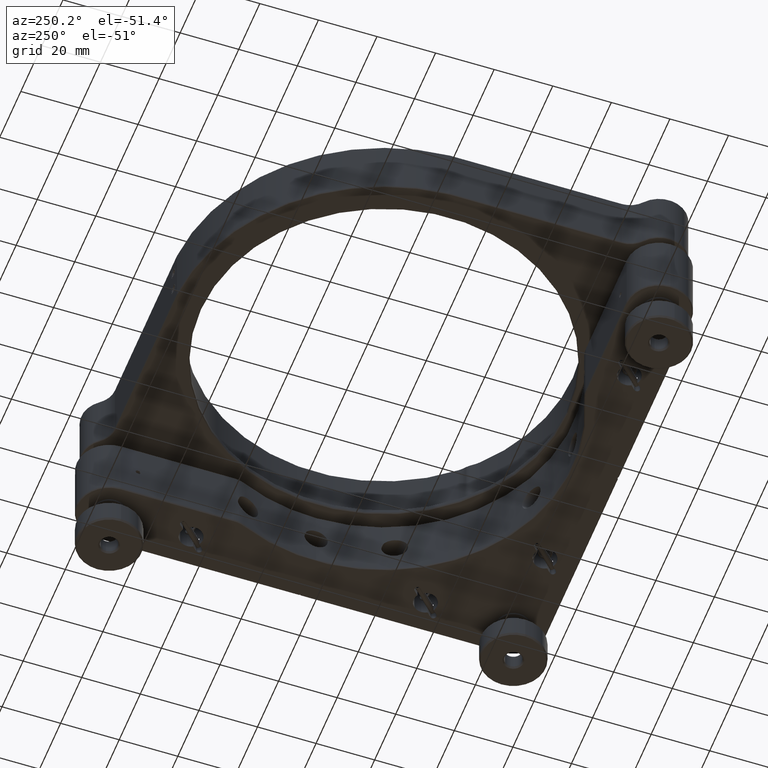
[diagram: clean part render]
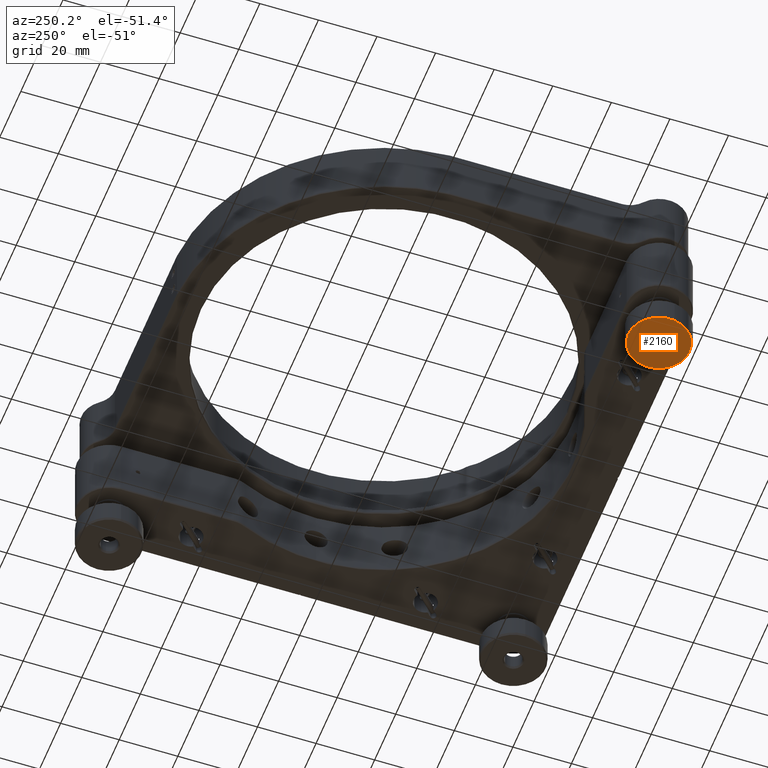
[diagram: same view with one face highlighted and labeled with its STEP entity id]
A machine part, auxiliary view. The second image highlights one B-rep face of the part: STEP entity #2160.
In plain terms, the highlighted planar face has unit normal (-0, 0, 1).
Its self-contained STEP definition (entity closure, byte-faithful):
#577 = DIRECTION ( 'NONE',  ( -9.708507162879170145E-50, 1.405738883550582351E-50, 1.000000000000000000 ) ) ;
#1206 = DIRECTION ( 'NONE',  ( 9.708507162879170145E-50, -1.405738883550582351E-50, -1.000000000000000000 ) ) ;
#1731 = DIRECTION ( 'NONE',  ( 0.9911279392971343860, 0.1329112784703236905, 0.000000000000000000 ) ) ;
#2160 = ADVANCED_FACE ( 'NONE', ( #10736, #4987 ), #4798, .F. ) ;
#2303 = ORIENTED_EDGE ( 'NONE', *, *, #6292, .T. ) ;
#2693 = CIRCLE ( 'NONE', #18663, 3.500000000000007550 ) ;
#3966 = DIRECTION ( 'NONE',  ( 9.708507162879170145E-50, -1.405738883550582351E-50, -1.000000000000000000 ) ) ;
#4798 = PLANE ( 'NONE',  #18291 ) ;
#4987 = FACE_OUTER_BOUND ( 'NONE', #18580, .T. ) ;
#6292 = EDGE_CURVE ( 'NONE', #10299, #15190, #17534, .T. ) ;
#6584 = ORIENTED_EDGE ( 'NONE', *, *, #12990, .T. ) ;
#6733 = DIRECTION ( 'NONE',  ( 0.9911279392971343860, 0.1329112784703233296, 0.000000000000000000 ) ) ;
#7746 = VERTEX_POINT ( 'NONE', #16695 ) ;
#7937 = CARTESIAN_POINT ( 'NONE',  ( -68.99999999999998579, -69.00000000000001421, -27.10050506338832221 ) ) ;
#9748 = CARTESIAN_POINT ( 'NONE',  ( -68.99999999999998579, -69.00000000000001421, -27.10050506338832221 ) ) ;
#9787 = CARTESIAN_POINT ( 'NONE',  ( -68.99999999999998579, -69.00000000000001421, -27.10050506338832221 ) ) ;
#10299 = VERTEX_POINT ( 'NONE', #13527 ) ;
#10402 = ORIENTED_EDGE ( 'NONE', *, *, #16769, .T. ) ;
#10451 = DIRECTION ( 'NONE',  ( 0.9911279392971342750, 0.1329112784703246064, 9.435534145787547595E-50 ) ) ;
#10475 = CARTESIAN_POINT ( 'NONE',  ( -68.99999999999998579, -69.00000000000001421, -27.10050506338832221 ) ) ;
#10736 = FACE_BOUND ( 'NONE', #14770, .T. ) ;
#11134 = CARTESIAN_POINT ( 'NONE',  ( -65.53105221246001122, -68.53481052535389040, -27.10050506338832221 ) ) ;
#11963 = CARTESIAN_POINT ( 'NONE',  ( -68.99999999999998579, -69.00000000000001421, -27.10050506338832221 ) ) ;
#12990 = EDGE_CURVE ( 'NONE', #15190, #10299, #14901, .T. ) ;
#13527 = CARTESIAN_POINT ( 'NONE',  ( -58.59315663738008340, -67.60443157606161435, -27.10050506338832221 ) ) ;
#13925 = AXIS2_PLACEMENT_3D ( 'NONE', #10475, #577, #16236 ) ;
#14531 = CIRCLE ( 'NONE', #13925, 3.500000000000007550 ) ;
#14770 = EDGE_LOOP ( 'NONE', ( #10402, #16044 ) ) ;
#14886 = DIRECTION ( 'NONE',  ( -9.708507162878976435E-50, 1.405738883550608701E-50, 1.000000000000000000 ) ) ;
#14901 = CIRCLE ( 'NONE', #18158, 10.49999999999998934 ) ;
#15043 = VERTEX_POINT ( 'NONE', #11134 ) ;
#15190 = VERTEX_POINT ( 'NONE', #15472 ) ;
#15472 = CARTESIAN_POINT ( 'NONE',  ( -79.40684336261989529, -70.39556842393842828, -27.10050506338832221 ) ) ;
#16031 = AXIS2_PLACEMENT_3D ( 'NONE', #9787, #1206, #1731 ) ;
#16044 = ORIENTED_EDGE ( 'NONE', *, *, #18418, .T. ) ;
#16236 = DIRECTION ( 'NONE',  ( 0.9911279392971343860, 0.1329112784703233296, 0.000000000000000000 ) ) ;
#16695 = CARTESIAN_POINT ( 'NONE',  ( -72.46894778753997457, -69.46518947464615223, -27.10050506338832221 ) ) ;
#16769 = EDGE_CURVE ( 'NONE', #7746, #15043, #2693, .T. ) ;
#17534 = CIRCLE ( 'NONE', #16031, 10.49999999999999467 ) ;
#18145 = DIRECTION ( 'NONE',  ( -9.708507162879170145E-50, 1.405738883550582351E-50, 1.000000000000000000 ) ) ;
#18158 = AXIS2_PLACEMENT_3D ( 'NONE', #7937, #3966, #18298 ) ;
#18291 = AXIS2_PLACEMENT_3D ( 'NONE', #11963, #14886, #10451 ) ;
#18298 = DIRECTION ( 'NONE',  ( 0.9911279392971342750, 0.1329112784703250782, 0.000000000000000000 ) ) ;
#18418 = EDGE_CURVE ( 'NONE', #15043, #7746, #14531, .T. ) ;
#18580 = EDGE_LOOP ( 'NONE', ( #2303, #6584 ) ) ;
#18663 = AXIS2_PLACEMENT_3D ( 'NONE', #9748, #18145, #6733 ) ;